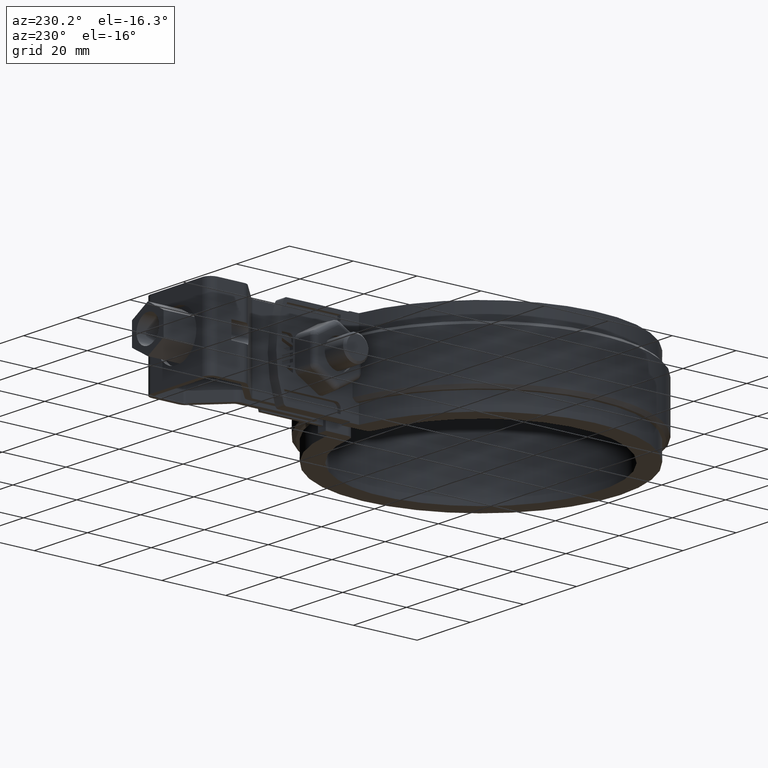
[diagram: clean part render]
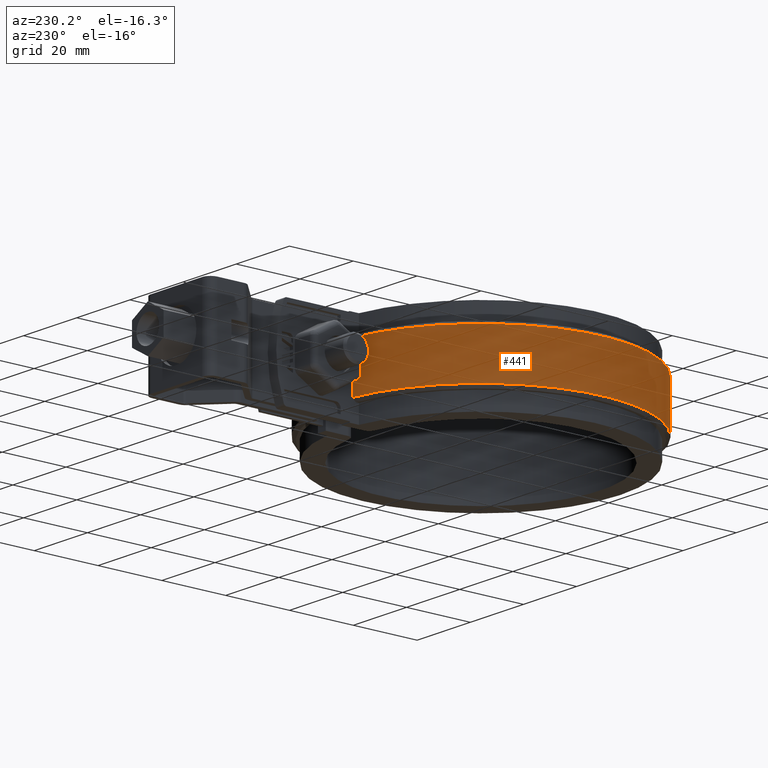
[diagram: same view with one face highlighted and labeled with its STEP entity id]
A machine part, auxiliary view. The second image highlights one B-rep face of the part: STEP entity #441.
In plain terms, the highlighted cylindrical surface (partial cylindrical patch) has radius 45.65 mm, axis along (0, 0, 1).
Its self-contained STEP definition (entity closure, byte-faithful):
#441 = ADVANCED_FACE( '', ( #830 ), #831, .T. );
#830 = FACE_OUTER_BOUND( '', #1746, .T. );
#831 = CYLINDRICAL_SURFACE( '', #1747, 45.6500000000000 );
#1746 = EDGE_LOOP( '', ( #3445, #3446, #3447, #3448 ) );
#1747 = AXIS2_PLACEMENT_3D( '', #3449, #3450, #3451 );
#3445 = ORIENTED_EDGE( '', *, *, #5486, .F. );
#3446 = ORIENTED_EDGE( '', *, *, #5543, .T. );
#3447 = ORIENTED_EDGE( '', *, *, #5507, .T. );
#3448 = ORIENTED_EDGE( '', *, *, #5537, .T. );
#3449 = CARTESIAN_POINT( '', ( 0.000000000000000, 0.000000000000000, 8.50000000000000 ) );
#3450 = DIRECTION( '', ( 0.000000000000000, 0.000000000000000, 1.00000000000000 ) );
#3451 = DIRECTION( '', ( 0.109529025191676, -0.993983597772398, 0.000000000000000 ) );
#5486 = EDGE_CURVE( '', #6437, #6439, #6440, .T. );
#5507 = EDGE_CURVE( '', #6475, #6476, #6477, .T. );
#5537 = EDGE_CURVE( '', #6476, #6439, #6527, .T. );
#5543 = EDGE_CURVE( '', #6437, #6475, #6534, .F. );
#6437 = VERTEX_POINT( '', #8930 );
#6439 = VERTEX_POINT( '', #8932 );
#6440 = LINE( '', #8933, #8934 );
#6475 = VERTEX_POINT( '', #9007 );
#6476 = VERTEX_POINT( '', #9008 );
#6477 = LINE( '', #9009, #9010 );
#6527 = CIRCLE( '', #9089, 45.6500000000000 );
#6534 = CIRCLE( '', #9099, 45.6500000000000 );
#8930 = CARTESIAN_POINT( '', ( -22.5484975690429, -39.6924143556281, 7.50000000000000 ) );
#8932 = CARTESIAN_POINT( '', ( -22.5484975690429, -39.6924143556281, -7.50000000000000 ) );
#8933 = CARTESIAN_POINT( '', ( -22.5484975690429, -39.6924143556281, 8.50000000000000 ) );
#8934 = VECTOR( '', #10845, 1000.00000000000 );
#9007 = CARTESIAN_POINT( '', ( -6.00000000000000, 45.2539777257204, 7.50000000000000 ) );
#9008 = CARTESIAN_POINT( '', ( -6.00000000000000, 45.2539777257204, -7.50000000000000 ) );
#9009 = CARTESIAN_POINT( '', ( -6.00000000000000, 45.2539777257204, 8.50000000000000 ) );
#9010 = VECTOR( '', #10876, 1000.00000000000 );
#9089 = AXIS2_PLACEMENT_3D( '', #10924, #10925, #10926 );
#9099 = AXIS2_PLACEMENT_3D( '', #10936, #10937, #10938 );
#10845 = DIRECTION( '', ( 0.000000000000000, 0.000000000000000, -1.00000000000000 ) );
#10876 = DIRECTION( '', ( 0.000000000000000, 0.000000000000000, -1.00000000000000 ) );
#10924 = CARTESIAN_POINT( '', ( 0.000000000000000, 0.000000000000000, -7.50000000000000 ) );
#10925 = DIRECTION( '', ( 0.000000000000000, 0.000000000000000, 1.00000000000000 ) );
#10926 = DIRECTION( '', ( 1.00000000000000, 0.000000000000000, 0.000000000000000 ) );
#10936 = CARTESIAN_POINT( '', ( 0.000000000000000, 0.000000000000000, 7.50000000000000 ) );
#10937 = DIRECTION( '', ( 0.000000000000000, 0.000000000000000, 1.00000000000000 ) );
#10938 = DIRECTION( '', ( 1.00000000000000, 0.000000000000000, 0.000000000000000 ) );